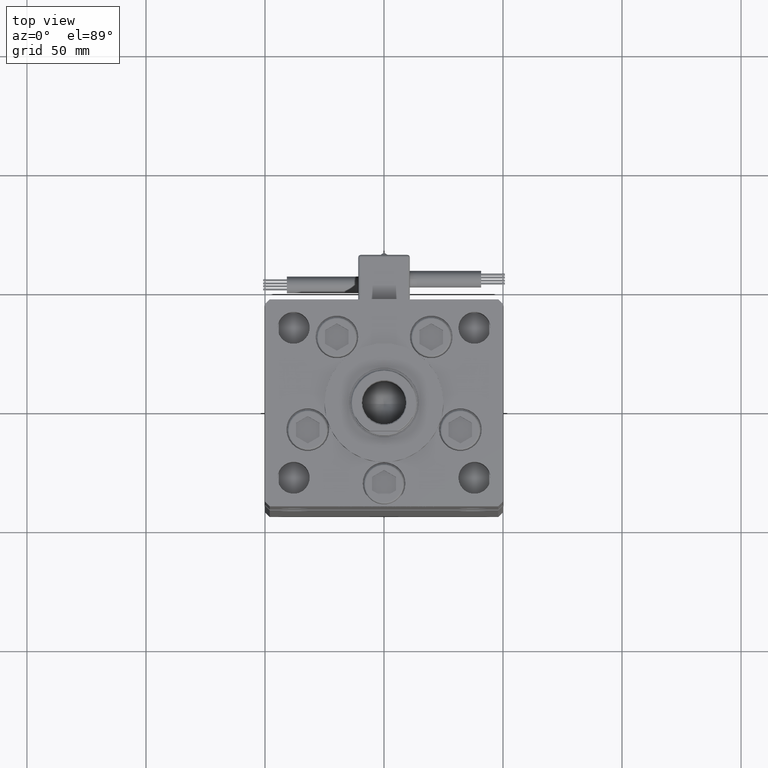
[diagram: clean part render]
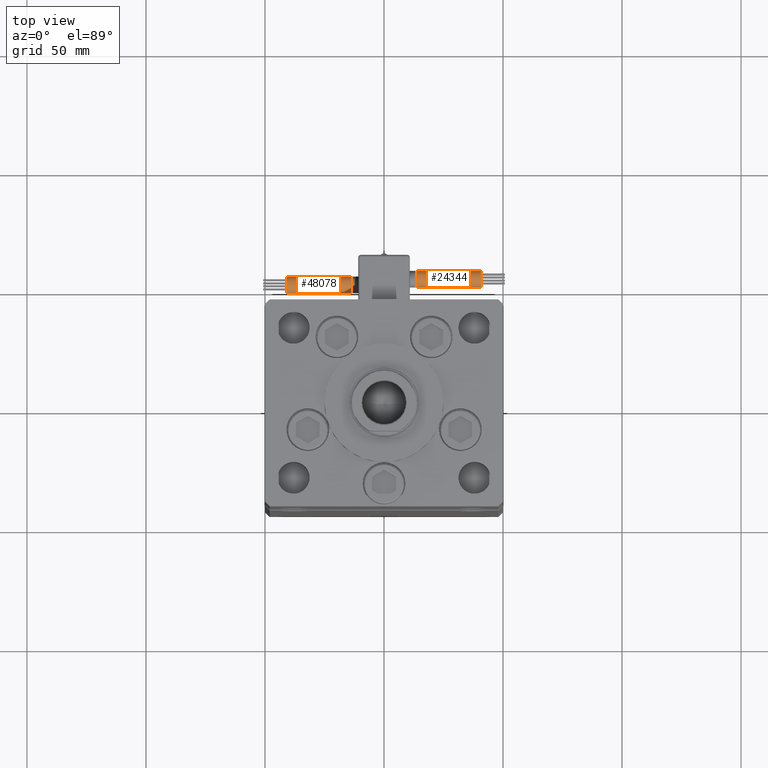
[diagram: same view with one multi-face feature highlighted, each face labeled with its STEP entity id]
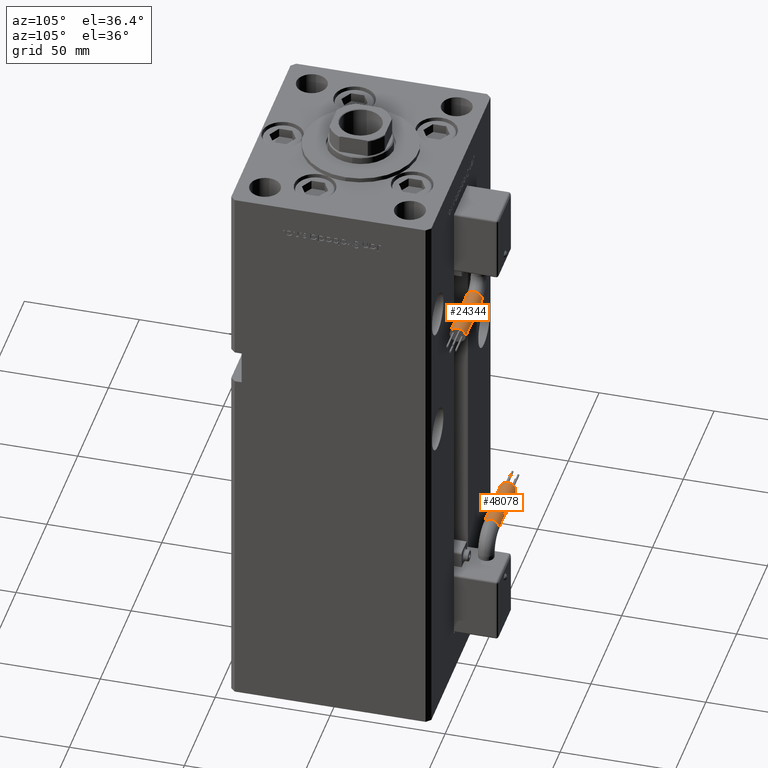
[diagram: same view with one multi-face feature highlighted, each face labeled with its STEP entity id]
A machine part, top view. The highlighted faces form ONE feature: a constant-radius fillet chain: 2 tangent blend faces with common blend radius 3.5 mm. The faces share edges in the B-rep.
A second angle (auxiliary view) of the same feature is appended — it is thin or edge-on in the first view.
Their STEP definitions:
[1] entity #24344 (Cylinder):
#1413 = DIRECTION ( 'NONE',  ( 1.000000000000000000, -2.599999999999999847E-16, 2.220446049250000002E-16 ) ) ;
#1447 = VERTEX_POINT ( 'NONE', #19146 ) ;
#2858 = VERTEX_POINT ( 'NONE', #28678 ) ;
#3690 = CARTESIAN_POINT ( 'NONE',  ( 13.79999999999999716, 38.50000000000000000, -65.00000000000000000 ) ) ;
#6576 = DIRECTION ( 'NONE',  ( 0.000000000000000000, 0.000000000000000000, -1.000000000000000000 ) ) ;
#6804 = CARTESIAN_POINT ( 'NONE',  ( 13.80000000000000071, 45.50000000000000711, -65.00000000000000000 ) ) ;
#7284 = AXIS2_PLACEMENT_3D ( 'NONE', #40762, #27954, #49577 ) ;
#8899 = EDGE_CURVE ( 'NONE', #38297, #46659, #46552, .T. ) ;
#11080 = DIRECTION ( 'NONE',  ( 1.000000000000000000, -2.599999999999999847E-16, 2.220446049250000002E-16 ) ) ;
#11455 = AXIS2_PLACEMENT_3D ( 'NONE', #32177, #37796, #6576 ) ;
#18110 = CARTESIAN_POINT ( 'NONE',  ( 40.80000000000000426, 45.50000000000000711, -65.00000000000000000 ) ) ;
#19146 = CARTESIAN_POINT ( 'NONE',  ( 40.80000000000000426, 38.50000000000000000, -65.00000000000000000 ) ) ;
#19599 = DIRECTION ( 'NONE',  ( 1.000000000000000000, -2.599999999999999847E-16, 2.220446049250000002E-16 ) ) ;
#20684 = EDGE_CURVE ( 'NONE', #46659, #1447, #46346, .T. ) ;
#22399 = EDGE_CURVE ( 'NONE', #2858, #38297, #32369, .T. ) ;
#23031 = ORIENTED_EDGE ( 'NONE', *, *, #8899, .T. ) ;
#24344 = ADVANCED_FACE ( 'NONE', ( #46054 ), #24437, .T. ) ;
#24437 = CYLINDRICAL_SURFACE ( 'NONE', #55110, 3.500000000000003109 ) ;
#25320 = ORIENTED_EDGE ( 'NONE', *, *, #20684, .T. ) ;
#26925 = CARTESIAN_POINT ( 'NONE',  ( 13.79999999999999893, 42.00000000000000000, -65.00000000000000000 ) ) ;
#27954 = DIRECTION ( 'NONE',  ( 1.000000000000000000, 0.000000000000000000, 2.220446049250000002E-16 ) ) ;
#28414 = LINE ( 'NONE', #6804, #43626 ) ;
#28678 = CARTESIAN_POINT ( 'NONE',  ( 13.79999999999999893, 45.50000000000000711, -65.00000000000000000 ) ) ;
#31580 = CARTESIAN_POINT ( 'NONE',  ( 13.79999999999999893, 38.50000000000000000, -65.00000000000000000 ) ) ;
#32177 = CARTESIAN_POINT ( 'NONE',  ( 13.79999999999999893, 42.00000000000000000, -65.00000000000000000 ) ) ;
#32354 = EDGE_CURVE ( 'NONE', #32838, #1447, #52660, .T. ) ;
#32369 = CIRCLE ( 'NONE', #11455, 3.500000000000003109 ) ;
#32409 = CARTESIAN_POINT ( 'NONE',  ( 13.79999999999999893, 42.00000000000000000, -65.00000000000000000 ) ) ;
#32838 = VERTEX_POINT ( 'NONE', #18110 ) ;
#34248 = VECTOR ( 'NONE', #11080, 1000.000000000000000 ) ;
#35254 = ORIENTED_EDGE ( 'NONE', *, *, #32354, .F. ) ;
#37530 = ORIENTED_EDGE ( 'NONE', *, *, #55416, .F. ) ;
#37796 = DIRECTION ( 'NONE',  ( 1.000000000000000000, 0.000000000000000000, 2.220446049250000002E-16 ) ) ;
#37815 = DIRECTION ( 'NONE',  ( -4.956352788505158337E-16, -1.000000000000000000, 0.000000000000000000 ) ) ;
#38072 = CARTESIAN_POINT ( 'NONE',  ( 13.79999999999999893, 41.99999999999999289, -61.50000000000000000 ) ) ;
#38297 = VERTEX_POINT ( 'NONE', #38072 ) ;
#40025 = DIRECTION ( 'NONE',  ( 1.000000000000000000, 0.000000000000000000, 2.220446049250000002E-16 ) ) ;
#40762 = CARTESIAN_POINT ( 'NONE',  ( 40.80000000000000426, 42.00000000000000000, -65.00000000000000000 ) ) ;
#42650 = ORIENTED_EDGE ( 'NONE', *, *, #22399, .T. ) ;
#43626 = VECTOR ( 'NONE', #1413, 1000.000000000000000 ) ;
#44282 = DIRECTION ( 'NONE',  ( 0.000000000000000000, 0.000000000000000000, -1.000000000000000000 ) ) ;
#46054 = FACE_OUTER_BOUND ( 'NONE', #54829, .T. ) ;
#46346 = LINE ( 'NONE', #3690, #34248 ) ;
#46552 = CIRCLE ( 'NONE', #47429, 3.500000000000003109 ) ;
#46659 = VERTEX_POINT ( 'NONE', #31580 ) ;
#47429 = AXIS2_PLACEMENT_3D ( 'NONE', #26925, #40025, #44282 ) ;
#49577 = DIRECTION ( 'NONE',  ( 0.000000000000000000, 0.000000000000000000, -1.000000000000000000 ) ) ;
#52660 = CIRCLE ( 'NONE', #7284, 3.500000000000003109 ) ;
#54829 = EDGE_LOOP ( 'NONE', ( #37530, #42650, #23031, #25320, #35254 ) ) ;
#55110 = AXIS2_PLACEMENT_3D ( 'NONE', #32409, #19599, #37815 ) ;
#55416 = EDGE_CURVE ( 'NONE', #2858, #32838, #28414, .T. ) ;
[2] entity #48078 (Cylinder):
#1413 = DIRECTION ( 'NONE',  ( 1.000000000000000000, -2.599999999999999847E-16, 2.220446049250000002E-16 ) ) ;
#1447 = VERTEX_POINT ( 'NONE', #19146 ) ;
#1531 = EDGE_CURVE ( 'NONE', #52232, #2858, #21136, .T. ) ;
#2174 = EDGE_CURVE ( 'NONE', #1447, #32838, #22998, .T. ) ;
#2858 = VERTEX_POINT ( 'NONE', #28678 ) ;
#3117 = CIRCLE ( 'NONE', #34895, 3.500000000000003109 ) ;
#3690 = CARTESIAN_POINT ( 'NONE',  ( 13.79999999999999716, 38.50000000000000000, -65.00000000000000000 ) ) ;
#6804 = CARTESIAN_POINT ( 'NONE',  ( 13.80000000000000071, 45.50000000000000711, -65.00000000000000000 ) ) ;
#7741 = CARTESIAN_POINT ( 'NONE',  ( 13.79999999999999893, 42.00000000000000000, -65.00000000000000000 ) ) ;
#8048 = DIRECTION ( 'NONE',  ( 0.000000000000000000, 0.000000000000000000, -1.000000000000000000 ) ) ;
#8884 = CARTESIAN_POINT ( 'NONE',  ( 13.79999999999999893, 42.00000000000000000, -65.00000000000000000 ) ) ;
#9320 = AXIS2_PLACEMENT_3D ( 'NONE', #8884, #12046, #8048 ) ;
#10139 = ORIENTED_EDGE ( 'NONE', *, *, #2174, .F. ) ;
#11080 = DIRECTION ( 'NONE',  ( 1.000000000000000000, -2.599999999999999847E-16, 2.220446049250000002E-16 ) ) ;
#12046 = DIRECTION ( 'NONE',  ( 1.000000000000000000, 0.000000000000000000, 2.220446049250000002E-16 ) ) ;
#12971 = ORIENTED_EDGE ( 'NONE', *, *, #55416, .T. ) ;
#13302 = DIRECTION ( 'NONE',  ( 0.000000000000000000, 0.000000000000000000, -1.000000000000000000 ) ) ;
#14448 = EDGE_CURVE ( 'NONE', #46659, #52232, #3117, .T. ) ;
#15416 = DIRECTION ( 'NONE',  ( 0.000000000000000000, 0.000000000000000000, -1.000000000000000000 ) ) ;
#15999 = DIRECTION ( 'NONE',  ( 1.000000000000000000, -2.599999999999999847E-16, 2.220446049250000002E-16 ) ) ;
#16280 = CYLINDRICAL_SURFACE ( 'NONE', #44280, 3.500000000000003109 ) ;
#17277 = ORIENTED_EDGE ( 'NONE', *, *, #1531, .T. ) ;
#18110 = CARTESIAN_POINT ( 'NONE',  ( 40.80000000000000426, 45.50000000000000711, -65.00000000000000000 ) ) ;
#19146 = CARTESIAN_POINT ( 'NONE',  ( 40.80000000000000426, 38.50000000000000000, -65.00000000000000000 ) ) ;
#20684 = EDGE_CURVE ( 'NONE', #46659, #1447, #46346, .T. ) ;
#21136 = CIRCLE ( 'NONE', #9320, 3.500000000000003109 ) ;
#22208 = ORIENTED_EDGE ( 'NONE', *, *, #20684, .F. ) ;
#22677 = CARTESIAN_POINT ( 'NONE',  ( 40.80000000000000426, 42.00000000000000000, -65.00000000000000000 ) ) ;
#22998 = CIRCLE ( 'NONE', #49291, 3.500000000000003109 ) ;
#28209 = CARTESIAN_POINT ( 'NONE',  ( 13.79999999999999893, 42.00000000000000000, -65.00000000000000000 ) ) ;
#28414 = LINE ( 'NONE', #6804, #43626 ) ;
#28678 = CARTESIAN_POINT ( 'NONE',  ( 13.79999999999999893, 45.50000000000000711, -65.00000000000000000 ) ) ;
#31580 = CARTESIAN_POINT ( 'NONE',  ( 13.79999999999999893, 38.50000000000000000, -65.00000000000000000 ) ) ;
#32838 = VERTEX_POINT ( 'NONE', #18110 ) ;
#34248 = VECTOR ( 'NONE', #11080, 1000.000000000000000 ) ;
#34895 = AXIS2_PLACEMENT_3D ( 'NONE', #28209, #37034, #15416 ) ;
#35121 = ORIENTED_EDGE ( 'NONE', *, *, #14448, .T. ) ;
#37034 = DIRECTION ( 'NONE',  ( 1.000000000000000000, 0.000000000000000000, 2.220446049250000002E-16 ) ) ;
#37408 = EDGE_LOOP ( 'NONE', ( #35121, #17277, #12971, #10139, #22208 ) ) ;
#37600 = CARTESIAN_POINT ( 'NONE',  ( 13.79999999999999893, 42.00000000000000000, -68.50000000000000000 ) ) ;
#37618 = FACE_OUTER_BOUND ( 'NONE', #37408, .T. ) ;
#41889 = DIRECTION ( 'NONE',  ( -4.956352788505158337E-16, -1.000000000000000000, 0.000000000000000000 ) ) ;
#43626 = VECTOR ( 'NONE', #1413, 1000.000000000000000 ) ;
#44280 = AXIS2_PLACEMENT_3D ( 'NONE', #7741, #15999, #41889 ) ;
#46346 = LINE ( 'NONE', #3690, #34248 ) ;
#46659 = VERTEX_POINT ( 'NONE', #31580 ) ;
#47710 = DIRECTION ( 'NONE',  ( 1.000000000000000000, 0.000000000000000000, 2.220446049250000002E-16 ) ) ;
#48078 = ADVANCED_FACE ( 'NONE', ( #37618 ), #16280, .T. ) ;
#49291 = AXIS2_PLACEMENT_3D ( 'NONE', #22677, #47710, #13302 ) ;
#52232 = VERTEX_POINT ( 'NONE', #37600 ) ;
#55416 = EDGE_CURVE ( 'NONE', #2858, #32838, #28414, .T. ) ;